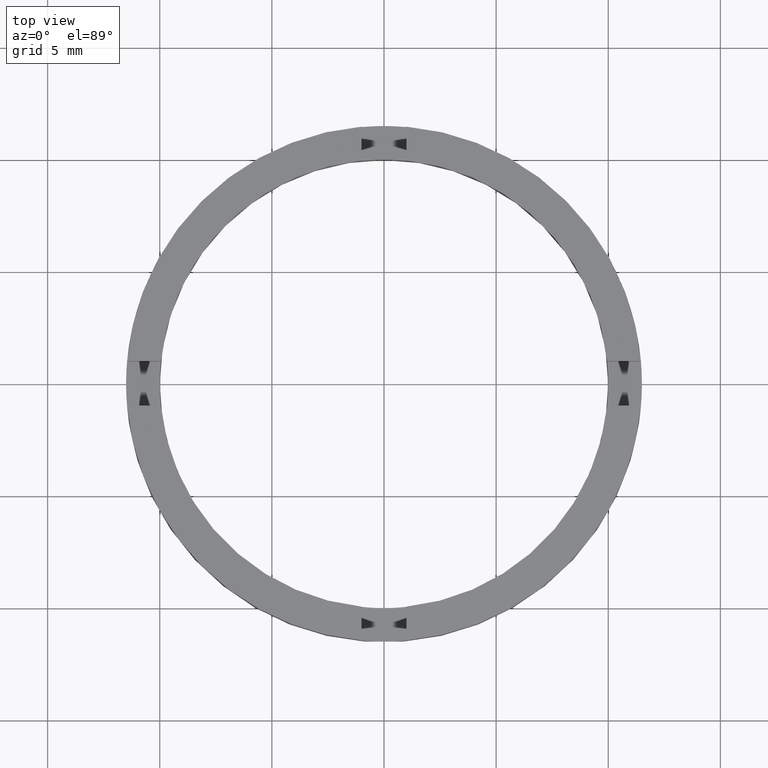
[diagram: clean part render]
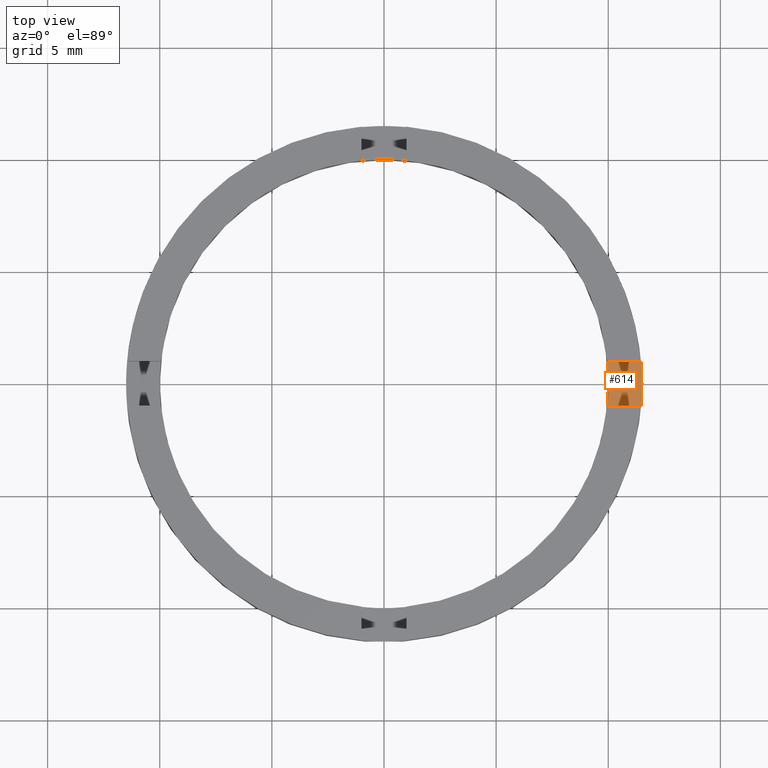
[diagram: same view with one face highlighted and labeled with its STEP entity id]
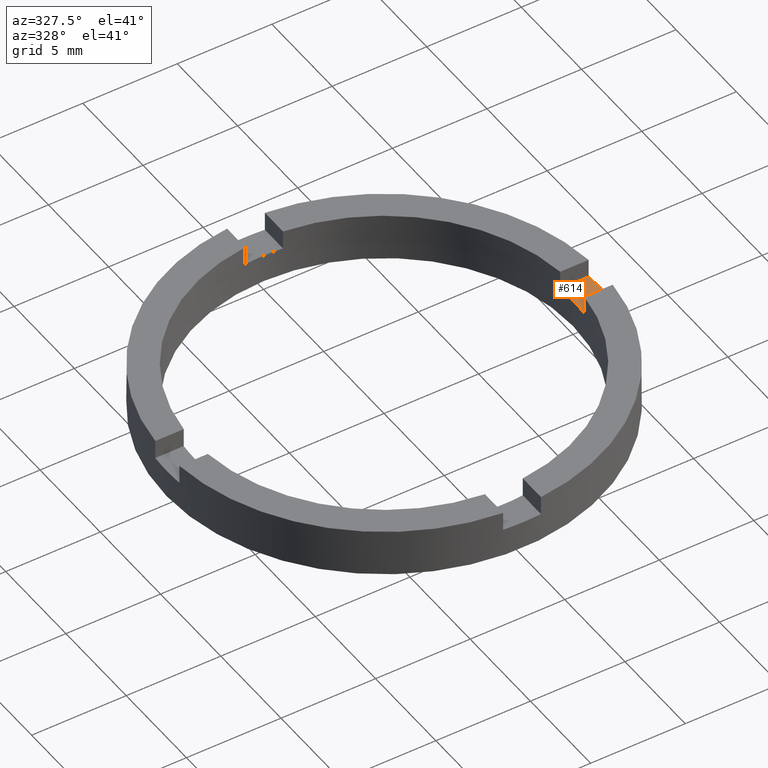
[diagram: same view with one face highlighted and labeled with its STEP entity id]
A machine part, top view. The second image highlights one B-rep face of the part: STEP entity #614.
A second angle (auxiliary view) of the same face is appended — the face is thin or edge-on in the first view.
In plain terms, the highlighted planar face has unit normal (0, 0, 1).
Its self-contained STEP definition (entity closure, byte-faithful):
#4 = EDGE_CURVE ( 'NONE', #382, #750, #124, .T. ) ;
#11 = CARTESIAN_POINT ( 'NONE',  ( 0.000000000000000000, 0.000000000000000000, 1.500000000000000000 ) ) ;
#26 = CARTESIAN_POINT ( 'NONE',  ( 9.999999999999998224, 1.224646799147353059E-15, 1.500000000000000000 ) ) ;
#37 = AXIS2_PLACEMENT_3D ( 'NONE', #11, #582, #626 ) ;
#43 = CARTESIAN_POINT ( 'NONE',  ( 0.000000000000000000, 0.000000000000000000, 1.500000000000000000 ) ) ;
#53 = EDGE_CURVE ( 'NONE', #484, #455, #142, .T. ) ;
#84 = CARTESIAN_POINT ( 'NONE',  ( 11.50000000000000000, 1.408343819019456176E-15, 1.500000000000000000 ) ) ;
#86 = DIRECTION ( 'NONE',  ( 0.000000000000000000, 0.000000000000000000, 1.000000000000000000 ) ) ;
#93 = AXIS2_PLACEMENT_3D ( 'NONE', #222, #339, #651 ) ;
#109 = VECTOR ( 'NONE', #551, 1000.000000000000000 ) ;
#124 = LINE ( 'NONE', #426, #109 ) ;
#132 = DIRECTION ( 'NONE',  ( 1.000000000000000000, 4.336808689942018352E-17, 0.000000000000000000 ) ) ;
#142 = CIRCLE ( 'NONE', #93, 11.50000000000000000 ) ;
#163 = AXIS2_PLACEMENT_3D ( 'NONE', #665, #321, #764 ) ;
#173 = DIRECTION ( 'NONE',  ( 1.000000000000000000, 0.000000000000000000, 0.000000000000000000 ) ) ;
#201 = EDGE_LOOP ( 'NONE', ( #386, #518, #374, #620, #396, #526 ) ) ;
#214 = CIRCLE ( 'NONE', #313, 9.999999999999998224 ) ;
#218 = PLANE ( 'NONE',  #163 ) ;
#222 = CARTESIAN_POINT ( 'NONE',  ( 0.000000000000000000, 0.000000000000000000, 1.500000000000000000 ) ) ;
#238 = CARTESIAN_POINT ( 'NONE',  ( 1.499999999999997780, -1.000000000000160538, 1.500000000000000000 ) ) ;
#288 = EDGE_CURVE ( 'NONE', #455, #382, #431, .T. ) ;
#289 = CARTESIAN_POINT ( 'NONE',  ( 11.45643923738961334, 0.9999999999998400169, 1.500000000000000000 ) ) ;
#313 = AXIS2_PLACEMENT_3D ( 'NONE', #316, #592, #444 ) ;
#316 = CARTESIAN_POINT ( 'NONE',  ( 0.000000000000000000, 0.000000000000000000, 1.500000000000000000 ) ) ;
#321 = DIRECTION ( 'NONE',  ( 0.000000000000000000, 0.000000000000000000, 1.000000000000000000 ) ) ;
#325 = CARTESIAN_POINT ( 'NONE',  ( 9.949874371066213641, 0.9999999999998400169, 1.500000000000000000 ) ) ;
#339 = DIRECTION ( 'NONE',  ( 0.000000000000000000, 0.000000000000000000, 1.000000000000000000 ) ) ;
#349 = CARTESIAN_POINT ( 'NONE',  ( 9.949874371066181666, -1.000000000000160094, 1.500000000000000000 ) ) ;
#374 = ORIENTED_EDGE ( 'NONE', *, *, #4, .T. ) ;
#382 = VERTEX_POINT ( 'NONE', #289 ) ;
#386 = ORIENTED_EDGE ( 'NONE', *, *, #53, .T. ) ;
#396 = ORIENTED_EDGE ( 'NONE', *, *, #578, .F. ) ;
#426 = CARTESIAN_POINT ( 'NONE',  ( 1.499999999999997780, 0.9999999999998395728, 1.500000000000000000 ) ) ;
#431 = CIRCLE ( 'NONE', #746, 11.50000000000000000 ) ;
#444 = DIRECTION ( 'NONE',  ( 1.000000000000000000, 0.000000000000000000, 0.000000000000000000 ) ) ;
#455 = VERTEX_POINT ( 'NONE', #84 ) ;
#461 = LINE ( 'NONE', #238, #469 ) ;
#469 = VECTOR ( 'NONE', #132, 1000.000000000000000 ) ;
#484 = VERTEX_POINT ( 'NONE', #694 ) ;
#491 = EDGE_CURVE ( 'NONE', #762, #484, #461, .T. ) ;
#518 = ORIENTED_EDGE ( 'NONE', *, *, #288, .T. ) ;
#526 = ORIENTED_EDGE ( 'NONE', *, *, #491, .T. ) ;
#529 = EDGE_CURVE ( 'NONE', #623, #750, #736, .T. ) ;
#551 = DIRECTION ( 'NONE',  ( -1.000000000000000000, -4.336808689942018352E-17, -0.000000000000000000 ) ) ;
#578 = EDGE_CURVE ( 'NONE', #762, #623, #214, .T. ) ;
#582 = DIRECTION ( 'NONE',  ( 0.000000000000000000, 0.000000000000000000, 1.000000000000000000 ) ) ;
#592 = DIRECTION ( 'NONE',  ( 0.000000000000000000, 0.000000000000000000, 1.000000000000000000 ) ) ;
#614 = ADVANCED_FACE ( 'NONE', ( #683 ), #218, .T. ) ;
#620 = ORIENTED_EDGE ( 'NONE', *, *, #529, .F. ) ;
#623 = VERTEX_POINT ( 'NONE', #26 ) ;
#626 = DIRECTION ( 'NONE',  ( 1.000000000000000000, 0.000000000000000000, 0.000000000000000000 ) ) ;
#651 = DIRECTION ( 'NONE',  ( 1.000000000000000000, 0.000000000000000000, 0.000000000000000000 ) ) ;
#665 = CARTESIAN_POINT ( 'NONE',  ( 0.000000000000000000, 0.000000000000000000, 1.500000000000000000 ) ) ;
#683 = FACE_OUTER_BOUND ( 'NONE', #201, .T. ) ;
#694 = CARTESIAN_POINT ( 'NONE',  ( 11.45643923738958669, -1.000000000000160094, 1.500000000000000000 ) ) ;
#736 = CIRCLE ( 'NONE', #37, 9.999999999999998224 ) ;
#746 = AXIS2_PLACEMENT_3D ( 'NONE', #43, #86, #173 ) ;
#750 = VERTEX_POINT ( 'NONE', #325 ) ;
#762 = VERTEX_POINT ( 'NONE', #349 ) ;
#764 = DIRECTION ( 'NONE',  ( 1.000000000000000000, 0.000000000000000000, -0.000000000000000000 ) ) ;